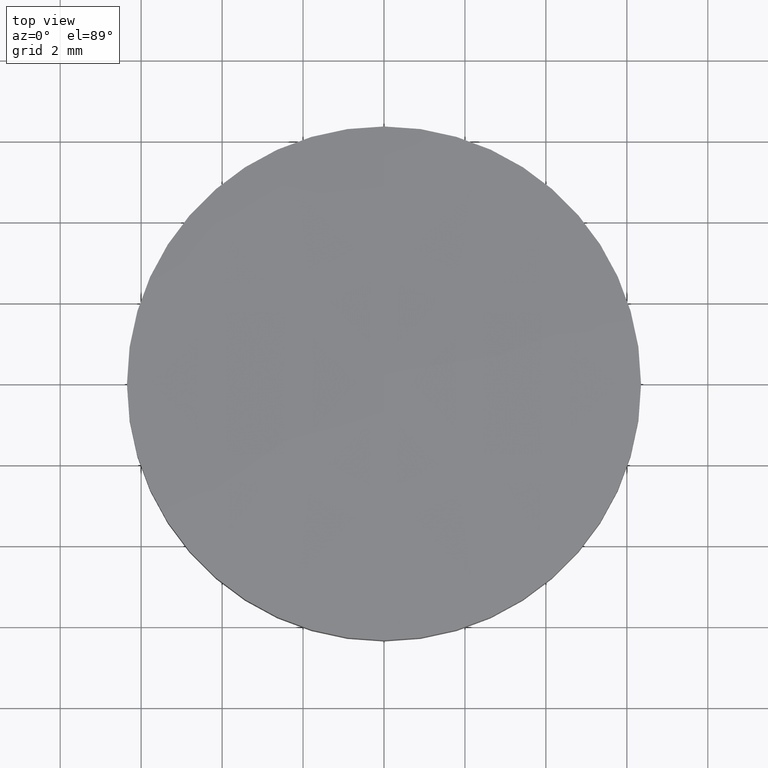
[diagram: clean part render]
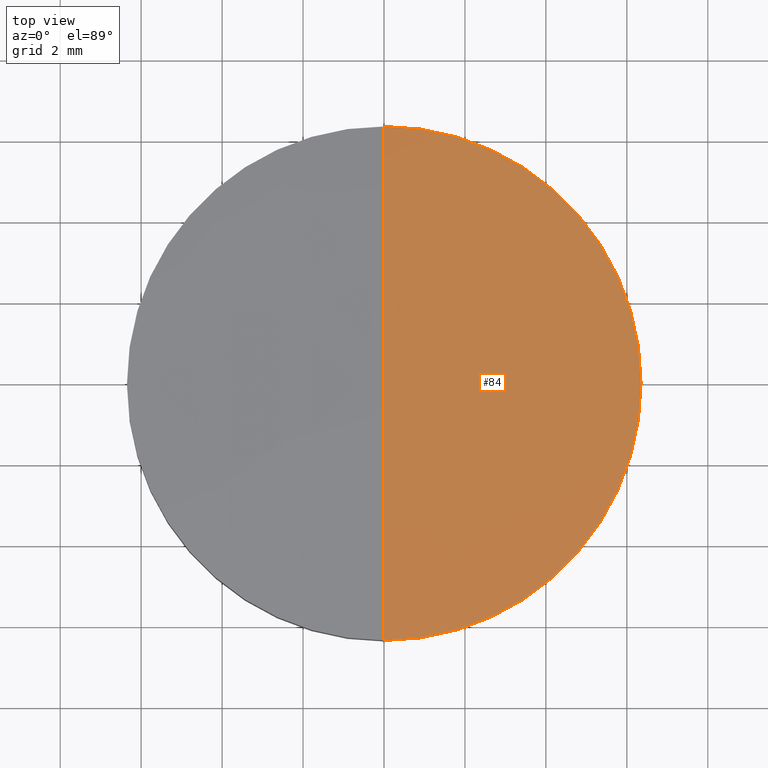
[diagram: same view with one face highlighted and labeled with its STEP entity id]
A machine part, top view. The second image highlights one B-rep face of the part: STEP entity #84.
In plain terms, the highlighted face is a freeform B-spline surface patch.
Its self-contained STEP definition (entity closure, byte-faithful):
#3 = DIRECTION ( 'NONE',  ( -1.000000000000000000, 7.982089632700459600E-032, 2.840290826249820100E-016 ) ) ;
#4 = EDGE_CURVE ( 'NONE', #161, #175, #172, .T. ) ;
#18 = DIRECTION ( 'NONE',  ( -0.0000000000000000000, -0.0000000000000000000, -1.000000000000000000 ) ) ;
#23 = CARTESIAN_POINT ( 'NONE',  ( 4.770489558936219500E-014, 2.144798117303475600, 2.066711926551373600 ) ) ;
#34 = EDGE_CURVE ( 'NONE', #175, #208, #154, .T. ) ;
#43 = ORIENTED_EDGE ( 'NONE', *, *, #4, .F. ) ;
#54 = CARTESIAN_POINT ( 'NONE',  ( 4.263824758279389100, -2.144798117303465400, 2.000809946101832700 ) ) ;
#56 = CARTESIAN_POINT ( 'NONE',  ( 2.220774660677933400E-014, -6.350000000000010300, 1.804832735681521000 ) ) ;
#57 = DIRECTION ( 'NONE',  ( 0.0000000000000000000, -1.000000000000000000, 2.684291645612080600E-016 ) ) ;
#59 = CARTESIAN_POINT ( 'NONE',  ( 4.770489558936219500E-014, -6.426102327413736300, 1.800122135962647800 ) ) ;
#63 = AXIS2_PLACEMENT_3D ( 'NONE', #156, #18, #158 ) ;
#69 = EDGE_CURVE ( 'NONE', #208, #161, #236, .T. ) ;
#72 = CARTESIAN_POINT ( 'NONE',  ( 2.132421672001572500, 2.144798117303475600, 2.066711926551373100 ) ) ;
#73 = ORIENTED_EDGE ( 'NONE', *, *, #69, .F. ) ;
#78 = CARTESIAN_POINT ( 'NONE',  ( 6.349999999999999600, 1.221245327087670000E-015, 1.804832735681519900 ) ) ;
#84 = ADVANCED_FACE ( 'NONE', ( #174 ), #112, .T. ) ;
#112 =( BOUNDED_SURFACE ( )  B_SPLINE_SURFACE ( 3, 3, ( 
 ( #291, #160, #266, #59 ),
 ( #139, #54, #252, #213 ),
 ( #210, #189, #72, #23 ),
 ( #211, #248, #207, #141 ) ),
 .UNSPECIFIED., .F., .F., .F. ) 
 B_SPLINE_SURFACE_WITH_KNOTS ( ( 4, 4 ),
 ( 4, 4 ),
 ( 0.0000000000000000000, 1.000000000000000000 ),
 ( 0.0000000000000000000, 1.000000000000000000 ),
 .UNSPECIFIED. ) 
 GEOMETRIC_REPRESENTATION_ITEM ( )  RATIONAL_B_SPLINE_SURFACE ( (
 ( 1.000000000000000000, 0.9996815558770323400, 0.9996815558770323400, 1.000000000000000000),
 ( 0.9987112968147171500, 0.9983932630717050600, 0.9983932630717050600, 0.9987112968147171500),
 ( 0.9987112968147171500, 0.9983932630717050600, 0.9983932630717050600, 0.9987112968147171500),
 ( 1.000000000000000000, 0.9996815558770323400, 0.9996815558770323400, 1.000000000000000000) ) ) 
 REPRESENTATION_ITEM ( '' )  SURFACE ( )  );
#120 = DIRECTION ( 'NONE',  ( -0.0000000000000000000, -0.0000000000000000000, -1.000000000000000000 ) ) ;
#139 = CARTESIAN_POINT ( 'NONE',  ( 6.392173060473999700, -2.144798117303464900, 1.869068943497871600 ) ) ;
#141 = CARTESIAN_POINT ( 'NONE',  ( 4.770489558936219500E-014, 6.426102327413747000, 1.800122135962661600 ) ) ;
#154 = CIRCLE ( 'NONE', #281, 6.349999999999999600 ) ;
#156 = CARTESIAN_POINT ( 'NONE',  ( 2.498001805406600200E-016, 1.221245327087670000E-015, 1.804832735681519900 ) ) ;
#158 = DIRECTION ( 'NONE',  ( 1.000000000000000000, 0.0000000000000000000, 0.0000000000000000000 ) ) ;
#160 = CARTESIAN_POINT ( 'NONE',  ( 4.252838692053340500, -6.426102327413735400, 1.734389956938527500 ) ) ;
#161 = VERTEX_POINT ( 'NONE', #56 ) ;
#172 = CIRCLE ( 'NONE', #290, 103.4000000000000100 ) ;
#174 = FACE_OUTER_BOUND ( 'NONE', #222, .T. ) ;
#175 = VERTEX_POINT ( 'NONE', #231 ) ;
#189 = CARTESIAN_POINT ( 'NONE',  ( 4.263824758279389100, 2.144798117303475600, 2.000809946101845600 ) ) ;
#190 = DIRECTION ( 'NONE',  ( 1.000000000000000000, 0.0000000000000000000, 0.0000000000000000000 ) ) ;
#207 = CARTESIAN_POINT ( 'NONE',  ( 2.126927326657059400, 6.426102327413745200, 1.800122135962660700 ) ) ;
#208 = VERTEX_POINT ( 'NONE', #78 ) ;
#210 = CARTESIAN_POINT ( 'NONE',  ( 6.392173060474000600, 2.144798117303475600, 1.869068943497885300 ) ) ;
#211 = CARTESIAN_POINT ( 'NONE',  ( 6.375703144248110900, 6.426102327413747000, 1.602988394968599000 ) ) ;
#212 = CARTESIAN_POINT ( 'NONE',  ( 2.498001805406600200E-016, 1.221245327087670000E-015, 1.804832735681519900 ) ) ;
#213 = CARTESIAN_POINT ( 'NONE',  ( 4.770489558936219500E-014, -2.144798117303464900, 2.066711926551361200 ) ) ;
#222 = EDGE_LOOP ( 'NONE', ( #43, #73, #288 ) ) ;
#231 = CARTESIAN_POINT ( 'NONE',  ( 2.220774660677933400E-014, 6.350000000000019200, 1.804832735681521000 ) ) ;
#236 = CIRCLE ( 'NONE', #63, 6.349999999999999600 ) ;
#248 = CARTESIAN_POINT ( 'NONE',  ( 4.252838692053341400, 6.426102327413745200, 1.734389956938541700 ) ) ;
#251 = CARTESIAN_POINT ( 'NONE',  ( -7.105427357601000300E-015, 7.105427357601000300E-015, -101.4000000000000100 ) ) ;
#252 = CARTESIAN_POINT ( 'NONE',  ( 2.132421672001572100, -2.144798117303465400, 2.066711926551359800 ) ) ;
#266 = CARTESIAN_POINT ( 'NONE',  ( 2.126927326657059000, -6.426102327413735400, 1.800122135962646700 ) ) ;
#281 = AXIS2_PLACEMENT_3D ( 'NONE', #212, #120, #190 ) ;
#288 = ORIENTED_EDGE ( 'NONE', *, *, #34, .F. ) ;
#290 = AXIS2_PLACEMENT_3D ( 'NONE', #251, #3, #57 ) ;
#291 = CARTESIAN_POINT ( 'NONE',  ( 6.375703144248110000, -6.426102327413736300, 1.602988394968585300 ) ) ;